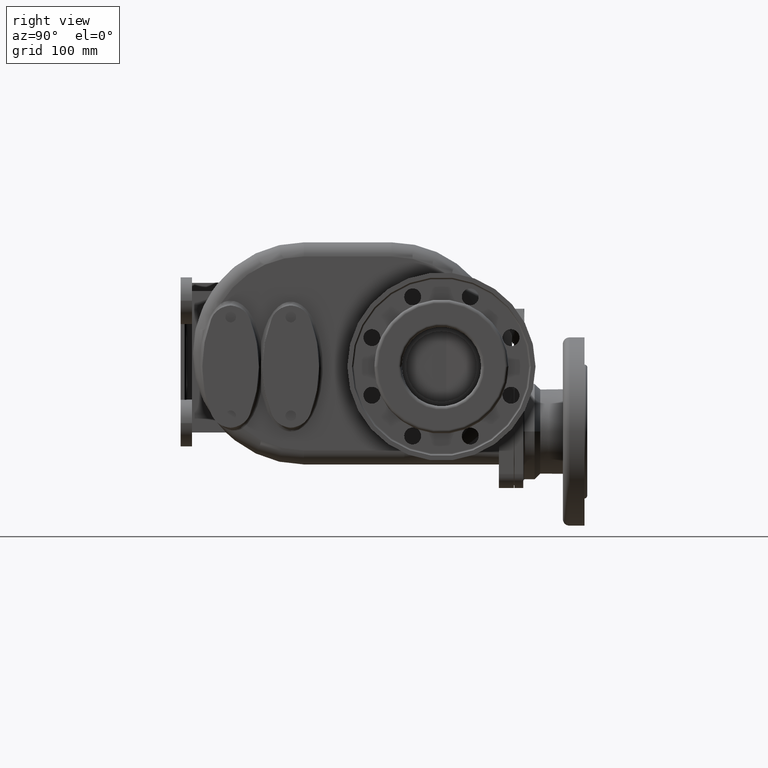
[diagram: clean part render]
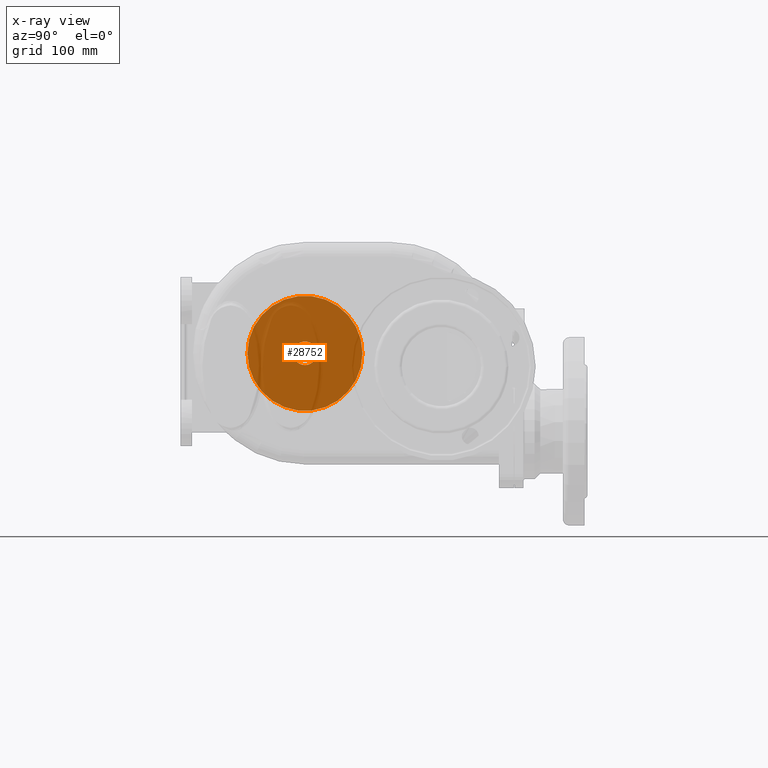
[diagram: x-ray — body ghosted, one internal face saturated and labeled with its STEP entity id]
A machine part, right view, then the same camera in x-ray: the body is ghosted and one INTERNAL B-rep face — a face not visible from any outside direction — is saturated and labeled: STEP entity #28752.
In plain terms, the highlighted planar face has unit normal (1, 0, 0).
Its self-contained STEP definition (entity closure, byte-faithful):
#7782=CARTESIAN_POINT('',(-5.55E1,1.2E2,0.E0));
#7783=DIRECTION('',(-1.E0,0.E0,0.E0));
#7784=DIRECTION('',(0.E0,-1.E0,0.E0));
#7785=AXIS2_PLACEMENT_3D('',#7782,#7783,#7784);
#7787=CARTESIAN_POINT('',(-5.55E1,1.2E2,0.E0));
#7788=DIRECTION('',(-1.E0,0.E0,0.E0));
#7789=DIRECTION('',(0.E0,1.E0,0.E0));
#7790=AXIS2_PLACEMENT_3D('',#7787,#7788,#7789);
#7792=CARTESIAN_POINT('',(-5.55E1,1.2E2,0.E0));
#7793=DIRECTION('',(1.E0,0.E0,0.E0));
#7794=DIRECTION('',(0.E0,0.E0,-1.E0));
#7795=AXIS2_PLACEMENT_3D('',#7792,#7793,#7794);
#7797=CARTESIAN_POINT('',(-5.55E1,1.2E2,0.E0));
#7798=DIRECTION('',(1.E0,0.E0,0.E0));
#7799=DIRECTION('',(0.E0,0.E0,1.E0));
#7800=AXIS2_PLACEMENT_3D('',#7797,#7798,#7799);
#7802=CARTESIAN_POINT('',(-5.55E1,1.2E2,0.E0));
#7803=DIRECTION('',(1.E0,0.E0,0.E0));
#7804=DIRECTION('',(0.E0,9.608329719571E-1,2.771281292110E-1));
#7805=AXIS2_PLACEMENT_3D('',#7802,#7803,#7804);
#7807=DIRECTION('',(0.E0,1.E0,0.E0));
#7808=VECTOR('',#7807,3.510412149464E0);
#7809=CARTESIAN_POINT('',(-5.55E1,1.285E2,3.464101615138E0));
#7810=LINE('',#7809,#7808);
#7811=DIRECTION('',(0.E0,0.E0,-1.E0));
#7812=VECTOR('',#7811,6.928203230276E0);
#7813=CARTESIAN_POINT('',(-5.55E1,1.285E2,3.464101615138E0));
#7814=LINE('',#7813,#7812);
#7815=DIRECTION('',(0.E0,1.E0,0.E0));
#7816=VECTOR('',#7815,3.510412149464E0);
#7817=CARTESIAN_POINT('',(-5.55E1,1.285E2,-3.464101615138E0));
#7818=LINE('',#7817,#7816);
#18538=CARTESIAN_POINT('',(-5.55E1,5.887750100080E1,1.775549959452E-14));
#18539=CARTESIAN_POINT('',(-5.55E1,1.811224989992E2,-1.008641529912E-14));
#18540=VERTEX_POINT('',#18538);
#18541=VERTEX_POINT('',#18539);
#19234=CARTESIAN_POINT('',(-5.55E1,1.2E2,-1.25E1));
#19235=CARTESIAN_POINT('',(-5.55E1,1.320104121495E2,-3.464101615138E0));
#19236=VERTEX_POINT('',#19234);
#19237=VERTEX_POINT('',#19235);
#19238=CARTESIAN_POINT('',(-5.55E1,1.320104121495E2,3.464101615138E0));
#19239=CARTESIAN_POINT('',(-5.55E1,1.2E2,1.25E1));
#19240=VERTEX_POINT('',#19238);
#19241=VERTEX_POINT('',#19239);
#19242=CARTESIAN_POINT('',(-5.55E1,1.285E2,3.464101615138E0));
#19243=CARTESIAN_POINT('',(-5.55E1,1.285E2,-3.464101615138E0));
#19244=VERTEX_POINT('',#19242);
#19245=VERTEX_POINT('',#19243);
#28729=CARTESIAN_POINT('',(-5.55E1,1.2E2,0.E0));
#28730=DIRECTION('',(1.E0,0.E0,0.E0));
#28731=DIRECTION('',(0.E0,0.E0,1.E0));
#28732=AXIS2_PLACEMENT_3D('',#28729,#28730,#28731);
#28733=PLANE('',#28732);
#28735=ORIENTED_EDGE('',*,*,#28734,.F.);
#28737=ORIENTED_EDGE('',*,*,#28736,.F.);
#28738=EDGE_LOOP('',(#28735,#28737));
#28739=FACE_OUTER_BOUND('',#28738,.F.);
#28740=ORIENTED_EDGE('',*,*,#28707,.F.);
#28742=ORIENTED_EDGE('',*,*,#28741,.F.);
#28743=ORIENTED_EDGE('',*,*,#28719,.F.);
#28745=ORIENTED_EDGE('',*,*,#28744,.F.);
#28747=ORIENTED_EDGE('',*,*,#28746,.T.);
#28749=ORIENTED_EDGE('',*,*,#28748,.T.);
#28750=EDGE_LOOP('',(#28740,#28742,#28743,#28745,#28747,#28749));
#28751=FACE_BOUND('',#28750,.F.);
#28752=ADVANCED_FACE('',(#28739,#28751),#28733,.F.);
#7786=CIRCLE('',#7785,6.112249899920E1);
#7791=CIRCLE('',#7790,6.112249899920E1);
#7796=CIRCLE('',#7795,1.25E1);
#7801=CIRCLE('',#7800,1.25E1);
#7806=CIRCLE('',#7805,1.25E1);
#28707=EDGE_CURVE('',#19236,#19237,#7796,.T.);
#28719=EDGE_CURVE('',#19240,#19241,#7806,.T.);
#28734=EDGE_CURVE('',#18540,#18541,#7786,.T.);
#28736=EDGE_CURVE('',#18541,#18540,#7791,.T.);
#28741=EDGE_CURVE('',#19241,#19236,#7801,.T.);
#28744=EDGE_CURVE('',#19244,#19240,#7810,.T.);
#28746=EDGE_CURVE('',#19244,#19245,#7814,.T.);
#28748=EDGE_CURVE('',#19245,#19237,#7818,.T.);